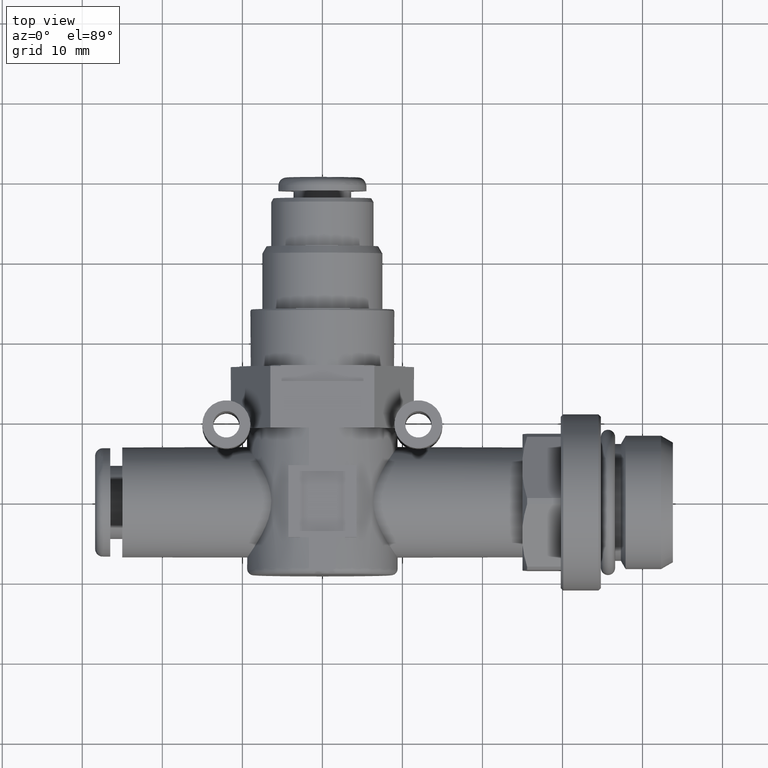
[diagram: clean part render]
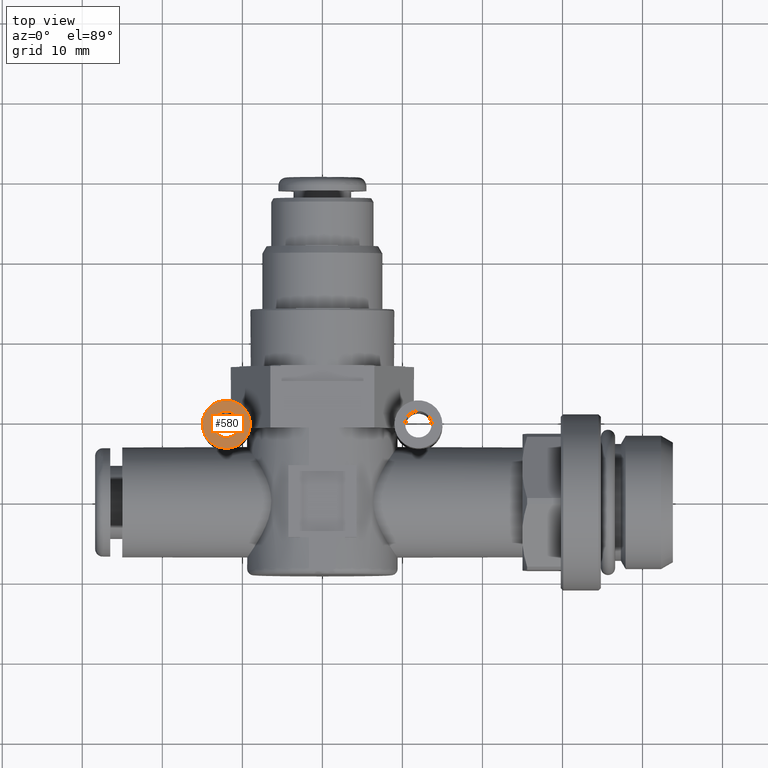
[diagram: same view with one face highlighted and labeled with its STEP entity id]
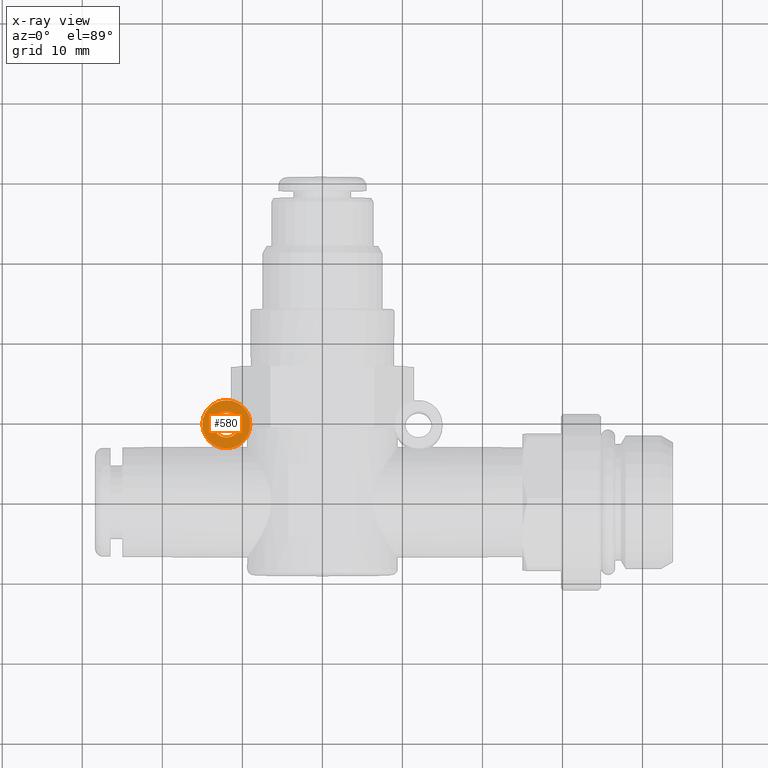
[diagram: x-ray of the same camera — body ghosted, the highlighted face saturated]
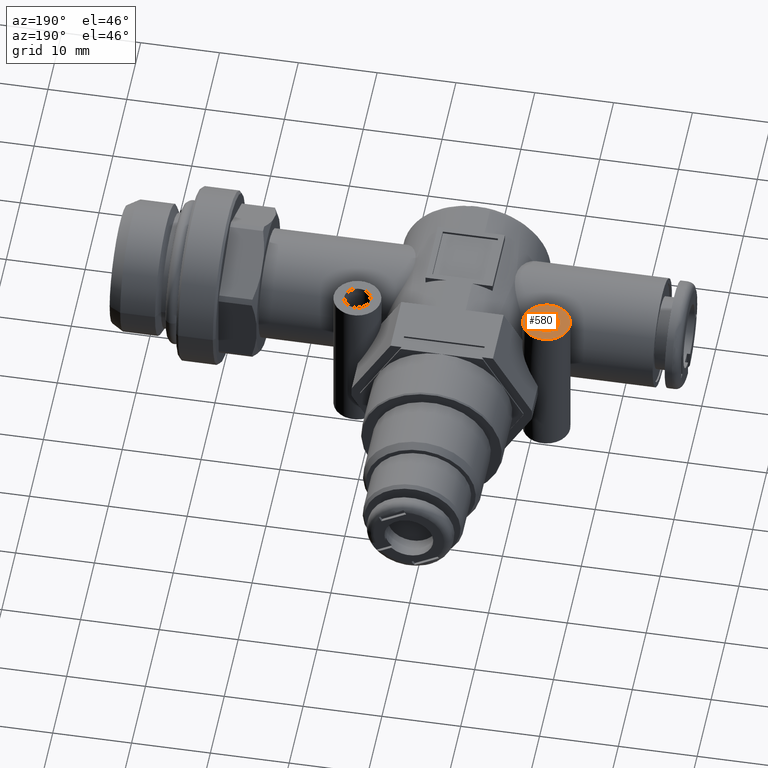
[diagram: same view with one face highlighted and labeled with its STEP entity id]
A machine part, top view. The second image highlights one B-rep face of the part: STEP entity #580.
The next image is the same camera in x-ray: the body ghosted, the highlighted face saturated — about 0% of this face is hidden behind the body in this view.
A second angle (auxiliary view) of the same face is appended — the face is thin or edge-on in the first view.
In plain terms, the highlighted planar face has unit normal (0, 0, 1).
Its self-contained STEP definition (entity closure, byte-faithful):
#580 = ADVANCED_FACE( '', ( #1217, #1218 ), #1219, .T. );
#1217 = FACE_BOUND( '', #1902, .T. );
#1218 = FACE_OUTER_BOUND( '', #1903, .T. );
#1219 = PLANE( '', #1904 );
#1902 = EDGE_LOOP( '', ( #3184 ) );
#1903 = EDGE_LOOP( '', ( #3185 ) );
#1904 = AXIS2_PLACEMENT_3D( '', #3186, #3187, #3188 );
#3184 = ORIENTED_EDGE( '', *, *, #4035, .T. );
#3185 = ORIENTED_EDGE( '', *, *, #4109, .T. );
#3186 = CARTESIAN_POINT( '', ( -12.0000000000000, 9.60000000000000, 9.35000000000000 ) );
#3187 = DIRECTION( '', ( 0.000000000000000, 0.000000000000000, 1.00000000000000 ) );
#3188 = DIRECTION( '', ( 1.00000000000000, 0.000000000000000, -0.000000000000000 ) );
#4035 = EDGE_CURVE( '', #4851, #4851, #4852, .F. );
#4109 = EDGE_CURVE( '', #4948, #4948, #4949, .T. );
#4851 = VERTEX_POINT( '', #6429 );
#4852 = CIRCLE( '', #6430, 1.65000000000000 );
#4948 = VERTEX_POINT( '', #6603 );
#4949 = CIRCLE( '', #6604, 3.00000000000000 );
#6429 = CARTESIAN_POINT( '', ( -10.3500000000000, 9.60000000000000, 9.35000000000000 ) );
#6430 = AXIS2_PLACEMENT_3D( '', #7305, #7306, #7307 );
#6603 = CARTESIAN_POINT( '', ( -9.00000000000000, 9.60000000000000, 9.35000000000000 ) );
#6604 = AXIS2_PLACEMENT_3D( '', #7378, #7379, #7380 );
#7305 = CARTESIAN_POINT( '', ( -12.0000000000000, 9.60000000000000, 9.35000000000000 ) );
#7306 = DIRECTION( '', ( 0.000000000000000, 0.000000000000000, 1.00000000000000 ) );
#7307 = DIRECTION( '', ( 1.00000000000000, 0.000000000000000, -0.000000000000000 ) );
#7378 = CARTESIAN_POINT( '', ( -12.0000000000000, 9.60000000000000, 9.35000000000000 ) );
#7379 = DIRECTION( '', ( 0.000000000000000, 0.000000000000000, 1.00000000000000 ) );
#7380 = DIRECTION( '', ( 1.00000000000000, 0.000000000000000, 0.000000000000000 ) );